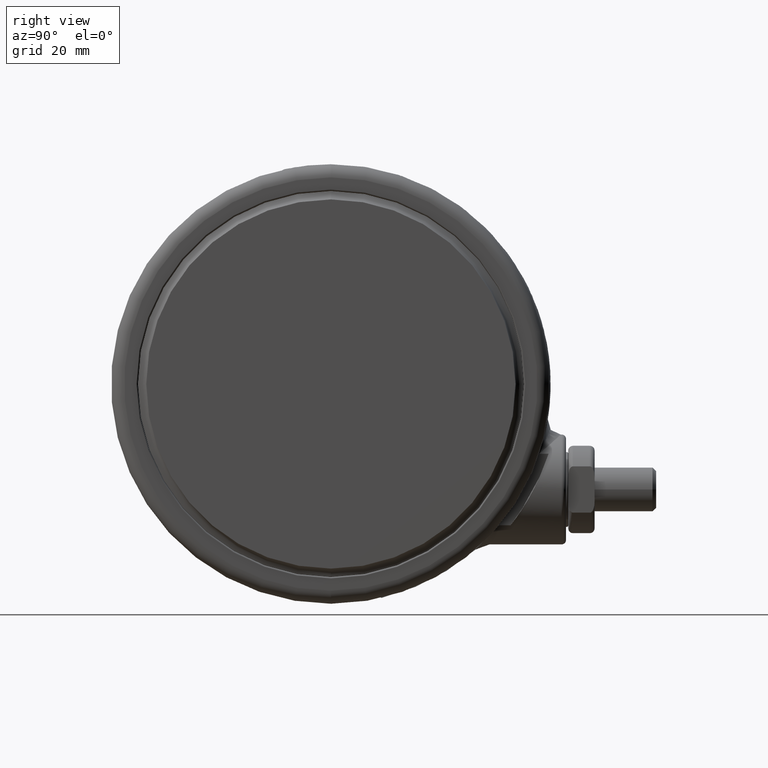
[diagram: clean part render]
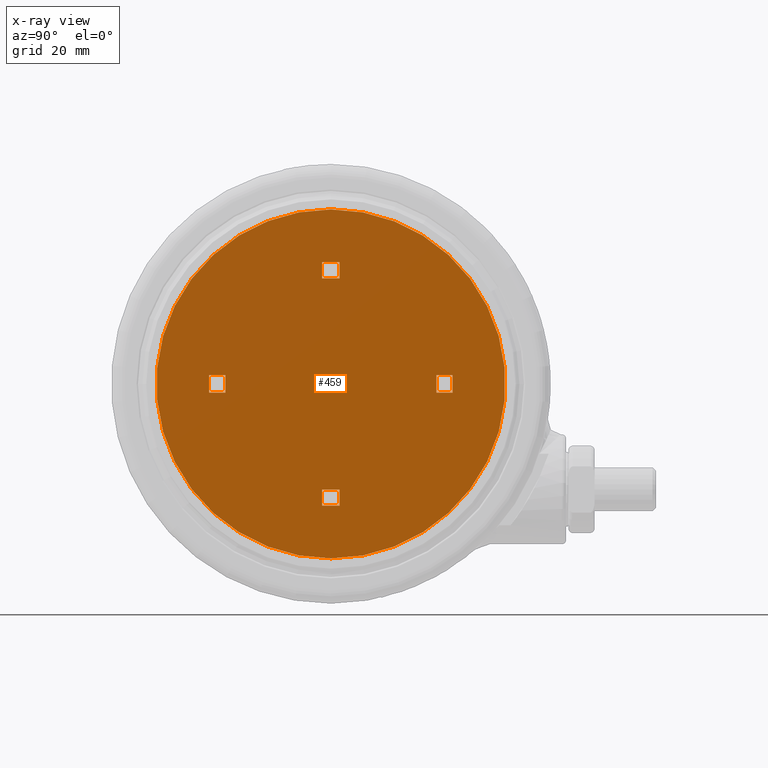
[diagram: x-ray — body ghosted, one internal face saturated and labeled with its STEP entity id]
A machine part, right view, then the same camera in x-ray: the body is ghosted and one INTERNAL B-rep face — a face not visible from any outside direction — is saturated and labeled: STEP entity #459.
In plain terms, the highlighted planar face has unit normal (-1, 0, 0).
Its self-contained STEP definition (entity closure, byte-faithful):
#188 = CARTESIAN_POINT ( 'NONE',  ( 2.000000000000001300, 27.70000000000000300, -46.79999999999990500 ) ) ;
#285 = LINE ( 'NONE', #23379, #12768 ) ;
#308 = EDGE_CURVE ( 'NONE', #15991, #885, #29763, .T. ) ;
#459 = ADVANCED_FACE ( 'NONE', ( #24284, #5148, #17629, #10989, #4365 ), #16487, .F. ) ;
#504 = CARTESIAN_POINT ( 'NONE',  ( -2.000000000000000000, 1.338847513585790800E-015, -46.79999999999990500 ) ) ;
#712 = CARTESIAN_POINT ( 'NONE',  ( 1.465618459832179300E-033, 1.575839027024737700E-015, -46.79999999999990500 ) ) ;
#885 = VERTEX_POINT ( 'NONE', #188 ) ;
#1030 = ORIENTED_EDGE ( 'NONE', *, *, #27669, .T. ) ;
#1104 = ORIENTED_EDGE ( 'NONE', *, *, #30998, .T. ) ;
#1396 = EDGE_CURVE ( 'NONE', #15991, #18202, #19579, .T. ) ;
#1536 = CIRCLE ( 'NONE', #11792, 39.69999999999999600 ) ;
#1541 = DIRECTION ( 'NONE',  ( -8.142324776845467900E-034, 8.826913830670518300E-017, -1.000000000000000000 ) ) ;
#1629 = EDGE_CURVE ( 'NONE', #4480, #24037, #31701, .T. ) ;
#1898 = ORIENTED_EDGE ( 'NONE', *, *, #12773, .F. ) ;
#2320 = ORIENTED_EDGE ( 'NONE', *, *, #23768, .T. ) ;
#2650 = ORIENTED_EDGE ( 'NONE', *, *, #1396, .F. ) ;
#2728 = CARTESIAN_POINT ( 'NONE',  ( 1.999999999999999100, -24.00000000000000000, -46.79999999999991200 ) ) ;
#3221 = DIRECTION ( 'NONE',  ( -1.000000000000000000, 4.413456915335259200E-017, 0.0000000000000000000 ) ) ;
#3470 = CARTESIAN_POINT ( 'NONE',  ( -1.999999999999999100, 24.00000000000000000, -46.79999999999990500 ) ) ;
#4365 = FACE_OUTER_BOUND ( 'NONE', #30216, .T. ) ;
#4480 = VERTEX_POINT ( 'NONE', #18487 ) ;
#4537 = CARTESIAN_POINT ( 'NONE',  ( -24.00000000000000000, -1.999999999999747500, -46.79999999999990500 ) ) ;
#4590 = LINE ( 'NONE', #25065, #17073 ) ;
#5148 = FACE_BOUND ( 'NONE', #27325, .T. ) ;
#5426 = CARTESIAN_POINT ( 'NONE',  ( -2.136241782311115700E-014, -1.999999999999998200, -46.79999999999990500 ) ) ;
#5709 = CARTESIAN_POINT ( 'NONE',  ( -39.69999999999999600, 3.327981422412835400E-015, -46.79999999999990500 ) ) ;
#6005 = VERTEX_POINT ( 'NONE', #20625 ) ;
#6020 = VERTEX_POINT ( 'NONE', #5709 ) ;
#6147 = VECTOR ( 'NONE', #31650, 1000.000000000000000 ) ;
#6935 = LINE ( 'NONE', #19339, #26028 ) ;
#7010 = CARTESIAN_POINT ( 'NONE',  ( 24.00000000000000000, -2.000000000000084400, -46.79999999999990500 ) ) ;
#7385 = ORIENTED_EDGE ( 'NONE', *, *, #17551, .F. ) ;
#7431 = CARTESIAN_POINT ( 'NONE',  ( -6.745971164247315500E-015, -1.999999999999998200, -46.79999999999990500 ) ) ;
#7469 = CARTESIAN_POINT ( 'NONE',  ( 1.465618459832179300E-033, 1.575839027024737700E-015, -46.79999999999990500 ) ) ;
#7914 = EDGE_CURVE ( 'NONE', #29796, #19199, #10577, .T. ) ;
#8126 = CARTESIAN_POINT ( 'NONE',  ( -2.000000000000001300, -27.69999999999999600, -46.79999999999991200 ) ) ;
#9102 = VERTEX_POINT ( 'NONE', #12793 ) ;
#9131 = VERTEX_POINT ( 'NONE', #15517 ) ;
#9251 = CARTESIAN_POINT ( 'NONE',  ( -27.69999999999999900, 2.000000000000293100, -46.79999999999990500 ) ) ;
#9505 = VECTOR ( 'NONE', #31281, 1000.000000000000000 ) ;
#9991 = DIRECTION ( 'NONE',  ( -1.000000000000000000, 4.413456915335259200E-017, 0.0000000000000000000 ) ) ;
#9995 = VECTOR ( 'NONE', #19968, 1000.000000000000000 ) ;
#10577 = LINE ( 'NONE', #14361, #28927 ) ;
#10595 = ORIENTED_EDGE ( 'NONE', *, *, #28262, .F. ) ;
#10989 = FACE_BOUND ( 'NONE', #12647, .T. ) ;
#11058 = ORIENTED_EDGE ( 'NONE', *, *, #12346, .T. ) ;
#11472 = CARTESIAN_POINT ( 'NONE',  ( 1.787450050710780100E-015, 40.50000000000000000, -46.79999999999990500 ) ) ;
#11752 = VECTOR ( 'NONE', #20055, 1000.000000000000000 ) ;
#11792 = AXIS2_PLACEMENT_3D ( 'NONE', #712, #18175, #3221 ) ;
#12346 = EDGE_CURVE ( 'NONE', #885, #14879, #29454, .T. ) ;
#12526 = CARTESIAN_POINT ( 'NONE',  ( -24.00000000000000000, -1.999999999999747500, -46.79999999999990500 ) ) ;
#12618 = DIRECTION ( 'NONE',  ( 3.535615907996487800E-015, 1.000000000000000000, 8.826913830670518300E-017 ) ) ;
#12647 = EDGE_LOOP ( 'NONE', ( #24882, #11058, #15766, #2650 ) ) ;
#12768 = VECTOR ( 'NONE', #15960, 1000.000000000000000 ) ;
#12773 = EDGE_CURVE ( 'NONE', #20237, #9102, #29422, .T. ) ;
#12793 = CARTESIAN_POINT ( 'NONE',  ( 24.00000000000000000, 1.999999999999915800, -46.79999999999990500 ) ) ;
#13315 = CARTESIAN_POINT ( 'NONE',  ( 1.222527565547866700E-015, 27.70000000000000300, -46.79999999999990500 ) ) ;
#13472 = ORIENTED_EDGE ( 'NONE', *, *, #22919, .T. ) ;
#13558 = VERTEX_POINT ( 'NONE', #30138 ) ;
#14361 = CARTESIAN_POINT ( 'NONE',  ( -1.222527565547866700E-015, -27.69999999999999600, -46.79999999999991200 ) ) ;
#14879 = VERTEX_POINT ( 'NONE', #29490 ) ;
#15136 = CIRCLE ( 'NONE', #28624, 39.69999999999999600 ) ;
#15194 = DIRECTION ( 'NONE',  ( -4.413456915335259200E-017, -1.000000000000000000, 9.243122377421230500E-017 ) ) ;
#15517 = CARTESIAN_POINT ( 'NONE',  ( 1.999999999999999100, -24.00000000000000000, -46.79999999999991200 ) ) ;
#15632 = EDGE_CURVE ( 'NONE', #19199, #6005, #21062, .T. ) ;
#15766 = ORIENTED_EDGE ( 'NONE', *, *, #28444, .T. ) ;
#15960 = DIRECTION ( 'NONE',  ( 4.413456915335259200E-017, 1.000000000000000000, 2.689695003876226800E-016 ) ) ;
#15991 = VERTEX_POINT ( 'NONE', #21873 ) ;
#16152 = LINE ( 'NONE', #5426, #21197 ) ;
#16335 = CARTESIAN_POINT ( 'NONE',  ( -27.69999999999999900, -1.999999999999706900, -46.79999999999990500 ) ) ;
#16487 = PLANE ( 'NONE',  #26011 ) ;
#16635 = LINE ( 'NONE', #7431, #9995 ) ;
#16784 = CARTESIAN_POINT ( 'NONE',  ( -27.69999999999959800, 40.50000000000000000, -46.79999999999990500 ) ) ;
#16870 = DIRECTION ( 'NONE',  ( -1.000000000000000000, 4.413456915335259200E-017, 4.709952866388670900E-033 ) ) ;
#16982 = EDGE_LOOP ( 'NONE', ( #22396, #18082, #27231, #10595 ) ) ;
#17073 = VECTOR ( 'NONE', #12618, 1000.000000000000000 ) ;
#17250 = CARTESIAN_POINT ( 'NONE',  ( -2.000000000000000000, 1.989368817077094900E-015, -46.79999999999990500 ) ) ;
#17389 = CARTESIAN_POINT ( 'NONE',  ( 1.999999999999998700, -27.69999999999999600, -46.79999999999991200 ) ) ;
#17484 = LINE ( 'NONE', #18293, #23333 ) ;
#17551 = EDGE_CURVE ( 'NONE', #29796, #9131, #285, .T. ) ;
#17629 = FACE_BOUND ( 'NONE', #31225, .T. ) ;
#17752 = LINE ( 'NONE', #2728, #30251 ) ;
#18082 = ORIENTED_EDGE ( 'NONE', *, *, #32076, .T. ) ;
#18175 = DIRECTION ( 'NONE',  ( 8.142324776845440500E-034, -8.826913830670518300E-017, 1.000000000000000000 ) ) ;
#18202 = VERTEX_POINT ( 'NONE', #3470 ) ;
#18293 = CARTESIAN_POINT ( 'NONE',  ( 2.071189651961985400E-014, 2.000000000000001800, -46.79999999999990500 ) ) ;
#18360 = EDGE_CURVE ( 'NONE', #20471, #22221, #26030, .T. ) ;
#18470 = ORIENTED_EDGE ( 'NONE', *, *, #24487, .T. ) ;
#18487 = CARTESIAN_POINT ( 'NONE',  ( -24.00000000000000000, 2.000000000000252200, -46.79999999999990500 ) ) ;
#19003 = DIRECTION ( 'NONE',  ( -1.000000000000000000, 4.413456915335259200E-017, 4.709952866388670900E-033 ) ) ;
#19199 = VERTEX_POINT ( 'NONE', #8126 ) ;
#19339 = CARTESIAN_POINT ( 'NONE',  ( 27.70000000000000300, 40.50000000000000000, -46.79999999999990500 ) ) ;
#19579 = LINE ( 'NONE', #17250, #32110 ) ;
#19968 = DIRECTION ( 'NONE',  ( -1.000000000000000000, 3.535615907996487800E-015, 1.807003620809178100E-016 ) ) ;
#20055 = DIRECTION ( 'NONE',  ( -1.051857858568275400E-014, -1.000000000000000000, -8.826913830670518300E-017 ) ) ;
#20237 = VERTEX_POINT ( 'NONE', #25073 ) ;
#20454 = DIRECTION ( 'NONE',  ( 4.413456915335259200E-017, 1.000000000000000000, 2.689695003876226800E-016 ) ) ;
#20471 = VERTEX_POINT ( 'NONE', #16335 ) ;
#20625 = CARTESIAN_POINT ( 'NONE',  ( -2.000000000000000900, -24.00000000000000000, -46.79999999999991200 ) ) ;
#21062 = LINE ( 'NONE', #504, #27713 ) ;
#21078 = CARTESIAN_POINT ( 'NONE',  ( -1.999999999999999100, 24.00000000000000000, -46.79999999999990500 ) ) ;
#21197 = VECTOR ( 'NONE', #30409, 1000.000000000000000 ) ;
#21848 = DIRECTION ( 'NONE',  ( -3.535615907996487800E-015, -1.000000000000000000, -8.826913830670518300E-017 ) ) ;
#21873 = CARTESIAN_POINT ( 'NONE',  ( -1.999999999999998700, 27.70000000000000300, -46.79999999999990500 ) ) ;
#22221 = VERTEX_POINT ( 'NONE', #9251 ) ;
#22266 = DIRECTION ( 'NONE',  ( -4.413456915335259200E-017, -1.000000000000000000, 9.243122377421230500E-017 ) ) ;
#22380 = EDGE_CURVE ( 'NONE', #6020, #13558, #15136, .T. ) ;
#22396 = ORIENTED_EDGE ( 'NONE', *, *, #18360, .T. ) ;
#22691 = DIRECTION ( 'NONE',  ( 1.000000000000000000, -4.413456915335259200E-017, -4.709952866388670900E-033 ) ) ;
#22919 = EDGE_CURVE ( 'NONE', #20237, #25461, #6935, .T. ) ;
#22977 = VERTEX_POINT ( 'NONE', #7010 ) ;
#23122 = VECTOR ( 'NONE', #30805, 1000.000000000000000 ) ;
#23177 = VECTOR ( 'NONE', #23620, 1000.000000000000000 ) ;
#23333 = VECTOR ( 'NONE', #28211, 1000.000000000000000 ) ;
#23379 = CARTESIAN_POINT ( 'NONE',  ( 2.000000000000000000, 1.162309236972380500E-015, -46.79999999999990500 ) ) ;
#23620 = DIRECTION ( 'NONE',  ( -1.000000000000000000, 4.413456915335259200E-017, 4.709952866388670900E-033 ) ) ;
#23768 = EDGE_CURVE ( 'NONE', #22977, #9102, #4590, .T. ) ;
#24037 = VERTEX_POINT ( 'NONE', #4537 ) ;
#24284 = FACE_BOUND ( 'NONE', #16982, .T. ) ;
#24487 = EDGE_CURVE ( 'NONE', #25461, #22977, #16635, .T. ) ;
#24882 = ORIENTED_EDGE ( 'NONE', *, *, #308, .T. ) ;
#24937 = DIRECTION ( 'NONE',  ( 8.142324776845440500E-034, -8.826913830670518300E-017, 1.000000000000000000 ) ) ;
#25065 = CARTESIAN_POINT ( 'NONE',  ( 24.00000000000000000, 1.999999999999915800, -46.79999999999990500 ) ) ;
#25073 = CARTESIAN_POINT ( 'NONE',  ( 27.69999999999999900, 1.999999999999905400, -46.79999999999990500 ) ) ;
#25461 = VERTEX_POINT ( 'NONE', #29984 ) ;
#26011 = AXIS2_PLACEMENT_3D ( 'NONE', #11472, #1541, #19003 ) ;
#26028 = VECTOR ( 'NONE', #21848, 1000.000000000000000 ) ;
#26030 = LINE ( 'NONE', #16784, #6147 ) ;
#27231 = ORIENTED_EDGE ( 'NONE', *, *, #1629, .T. ) ;
#27325 = EDGE_LOOP ( 'NONE', ( #29932, #31152, #1030, #7385 ) ) ;
#27408 = CARTESIAN_POINT ( 'NONE',  ( 2.000000000000000000, 1.812830540463684800E-015, -46.79999999999990500 ) ) ;
#27669 = EDGE_CURVE ( 'NONE', #6005, #9131, #17752, .T. ) ;
#27713 = VECTOR ( 'NONE', #20454, 1000.000000000000000 ) ;
#28211 = DIRECTION ( 'NONE',  ( 1.000000000000000000, -1.051857858568275400E-014, 1.807003620809165500E-016 ) ) ;
#28262 = EDGE_CURVE ( 'NONE', #20471, #24037, #16152, .T. ) ;
#28444 = EDGE_CURVE ( 'NONE', #14879, #18202, #29816, .T. ) ;
#28624 = AXIS2_PLACEMENT_3D ( 'NONE', #7469, #24937, #9991 ) ;
#28648 = VECTOR ( 'NONE', #15194, 1000.000000000000000 ) ;
#28742 = CARTESIAN_POINT ( 'NONE',  ( 7.396492467738625300E-015, 2.000000000000001800, -46.79999999999990500 ) ) ;
#28927 = VECTOR ( 'NONE', #16870, 1000.000000000000000 ) ;
#29422 = LINE ( 'NONE', #28742, #9505 ) ;
#29454 = LINE ( 'NONE', #27408, #28648 ) ;
#29490 = CARTESIAN_POINT ( 'NONE',  ( 2.000000000000000900, 24.00000000000000000, -46.79999999999990500 ) ) ;
#29763 = LINE ( 'NONE', #13315, #23122 ) ;
#29796 = VERTEX_POINT ( 'NONE', #17389 ) ;
#29816 = LINE ( 'NONE', #21078, #23177 ) ;
#29932 = ORIENTED_EDGE ( 'NONE', *, *, #7914, .T. ) ;
#29984 = CARTESIAN_POINT ( 'NONE',  ( 27.69999999999999900, -2.000000000000094600, -46.79999999999990500 ) ) ;
#30138 = CARTESIAN_POINT ( 'NONE',  ( 39.69999999999999600, 4.681568813233502500E-015, -46.79999999999990500 ) ) ;
#30216 = EDGE_LOOP ( 'NONE', ( #31710, #1104 ) ) ;
#30251 = VECTOR ( 'NONE', #22691, 1000.000000000000000 ) ;
#30409 = DIRECTION ( 'NONE',  ( 1.000000000000000000, -1.051857858568275400E-014, 1.807003620809165500E-016 ) ) ;
#30805 = DIRECTION ( 'NONE',  ( 1.000000000000000000, -4.413456915335259200E-017, -4.709952866388670900E-033 ) ) ;
#30998 = EDGE_CURVE ( 'NONE', #13558, #6020, #1536, .T. ) ;
#31152 = ORIENTED_EDGE ( 'NONE', *, *, #15632, .T. ) ;
#31225 = EDGE_LOOP ( 'NONE', ( #13472, #18470, #2320, #1898 ) ) ;
#31281 = DIRECTION ( 'NONE',  ( -1.000000000000000000, 3.535615907996487800E-015, 1.807003620809178100E-016 ) ) ;
#31650 = DIRECTION ( 'NONE',  ( 1.051857858568275400E-014, 1.000000000000000000, 8.826913830670518300E-017 ) ) ;
#31701 = LINE ( 'NONE', #12526, #11752 ) ;
#31710 = ORIENTED_EDGE ( 'NONE', *, *, #22380, .T. ) ;
#32076 = EDGE_CURVE ( 'NONE', #22221, #4480, #17484, .T. ) ;
#32110 = VECTOR ( 'NONE', #22266, 1000.000000000000000 ) ;